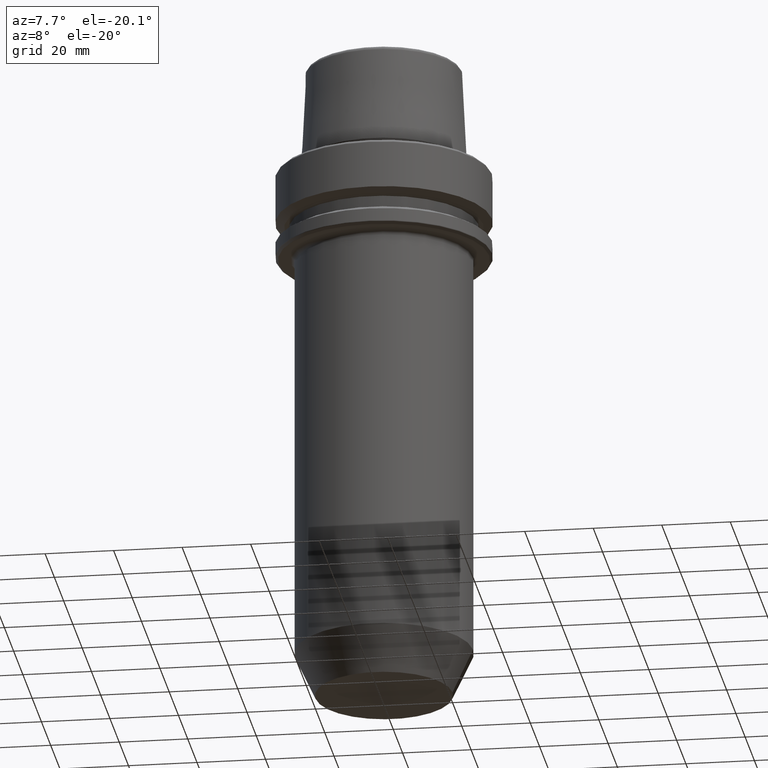
[diagram: clean part render]
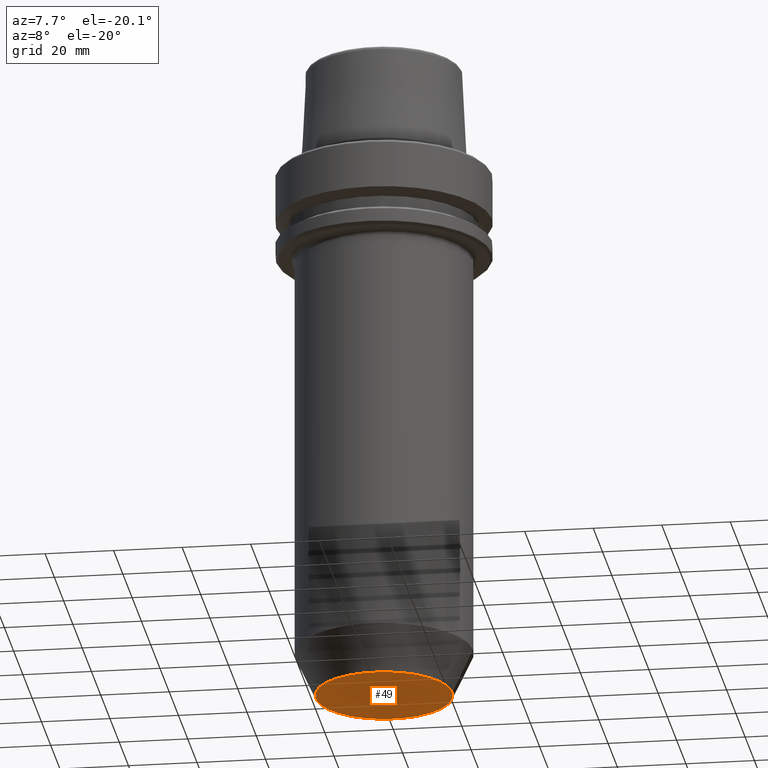
[diagram: same view with one face highlighted and labeled with its STEP entity id]
A machine part, auxiliary view. The second image highlights one B-rep face of the part: STEP entity #49.
In plain terms, the highlighted planar face has unit normal (0, -0, 1).
Its self-contained STEP definition (entity closure, byte-faithful):
#49 = ADVANCED_FACE ( 'NONE', ( #428 ), #454, .F. ) ;
#126 = CIRCLE ( 'NONE', #1009, 20.00000000000000000 ) ;
#232 = ORIENTED_EDGE ( 'NONE', *, *, #1168, .F. ) ;
#358 = DIRECTION ( 'NONE',  ( 1.000000000000000000, 0.0000000000000000000, 0.0000000000000000000 ) ) ;
#404 = CARTESIAN_POINT ( 'NONE',  ( 20.00000000000000000, 0.0000000000000000000, -160.0000000000000000 ) ) ;
#428 = FACE_OUTER_BOUND ( 'NONE', #917, .T. ) ;
#454 = PLANE ( 'NONE',  #631 ) ;
#456 = CARTESIAN_POINT ( 'NONE',  ( 0.0000000000000000000, 0.0000000000000000000, -160.0000000000000000 ) ) ;
#463 = VERTEX_POINT ( 'NONE', #404 ) ;
#486 = AXIS2_PLACEMENT_3D ( 'NONE', #1228, #541, #1117 ) ;
#541 = DIRECTION ( 'NONE',  ( -0.0000000000000000000, -0.0000000000000000000, 1.000000000000000000 ) ) ;
#590 = EDGE_CURVE ( 'NONE', #463, #1212, #610, .T. ) ;
#610 = CIRCLE ( 'NONE', #486, 20.00000000000000000 ) ;
#631 = AXIS2_PLACEMENT_3D ( 'NONE', #1014, #964, #1242 ) ;
#776 = ORIENTED_EDGE ( 'NONE', *, *, #590, .F. ) ;
#840 = CARTESIAN_POINT ( 'NONE',  ( -20.00000000000000000, 2.816687638038912400E-015, -160.0000000000000000 ) ) ;
#917 = EDGE_LOOP ( 'NONE', ( #776, #232 ) ) ;
#964 = DIRECTION ( 'NONE',  ( 0.0000000000000000000, -0.0000000000000000000, 1.000000000000000000 ) ) ;
#1009 = AXIS2_PLACEMENT_3D ( 'NONE', #456, #1032, #358 ) ;
#1014 = CARTESIAN_POINT ( 'NONE',  ( 0.0000000000000000000, 20.00000000000000000, -160.0000000000000000 ) ) ;
#1032 = DIRECTION ( 'NONE',  ( -0.0000000000000000000, -0.0000000000000000000, 1.000000000000000000 ) ) ;
#1117 = DIRECTION ( 'NONE',  ( 1.000000000000000000, 0.0000000000000000000, 0.0000000000000000000 ) ) ;
#1168 = EDGE_CURVE ( 'NONE', #1212, #463, #126, .T. ) ;
#1212 = VERTEX_POINT ( 'NONE', #840 ) ;
#1228 = CARTESIAN_POINT ( 'NONE',  ( 0.0000000000000000000, 0.0000000000000000000, -160.0000000000000000 ) ) ;
#1242 = DIRECTION ( 'NONE',  ( 1.000000000000000000, 0.0000000000000000000, 0.0000000000000000000 ) ) ;